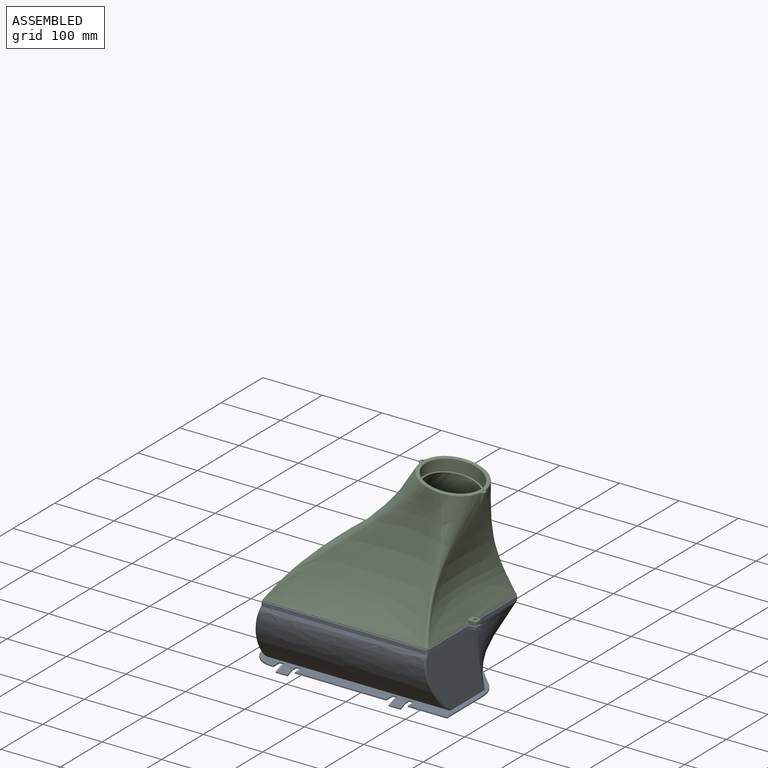
[diagram: assembled view]
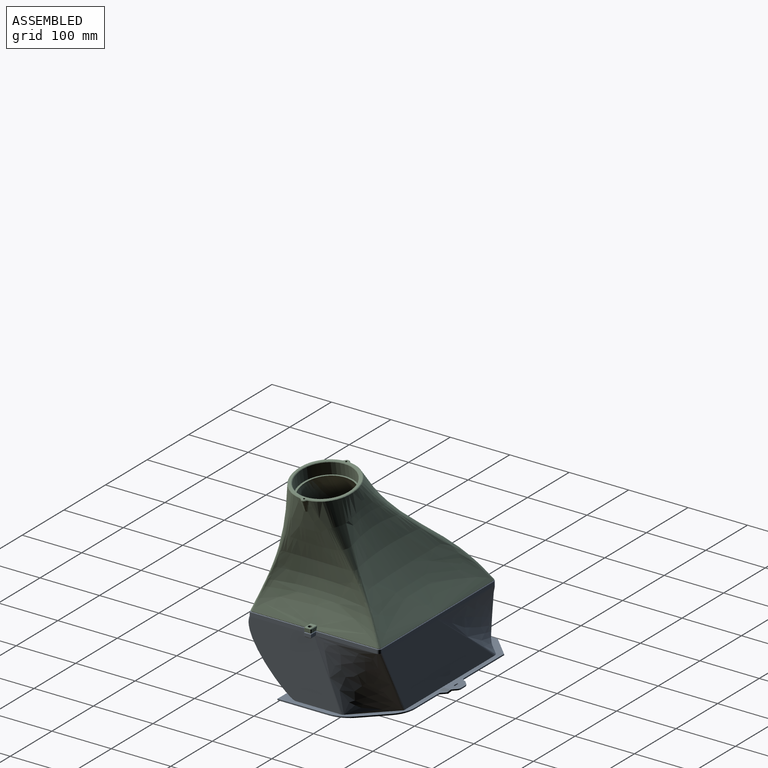
[diagram: assembled view, second angle]
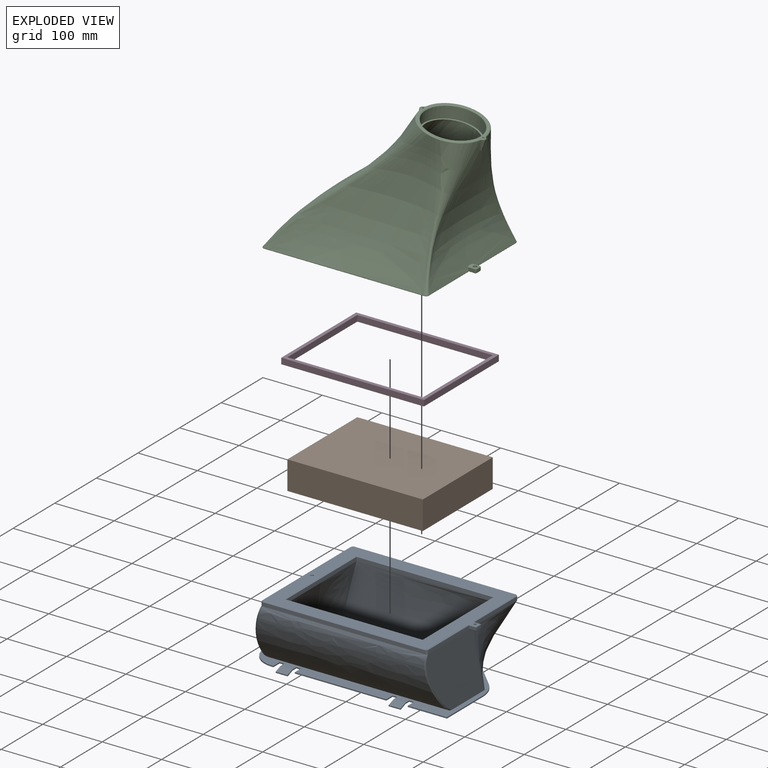
[diagram: exploded view]
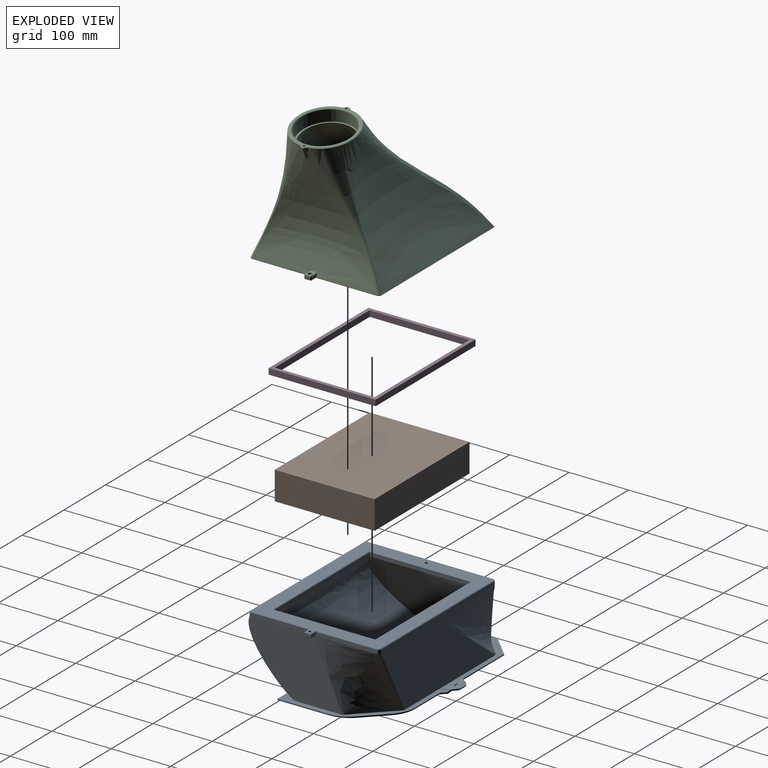
[diagram: exploded view, second angle]
ASSEMBLY  parts=4 mates=3
PART A: 123 faces, bbox 348.3x257.9x147.8 mm
  f0: plane 103x6.5mm, normal (1,0,0), area 663.5mm2, adj f71,f85,f99,f102,f113
  f1: bspline ~113x103.13mm, area 7040.3mm2, adj f57,f65,f77,f78,f93,f94,f120
  f2: plane 211.11x6.83mm, normal (-1,0,0), area 1371.6mm2, adj f74,f83,f86,f91,f92,f106
  f3: plane 335.43x180.15mm, normal (0,0,1), area 10633.3mm2, adj f5,f6,f7,f8,f9,f10,f11,f12
  f4: plane 39.82x4mm, normal (0,1,0), area 144.2mm2, adj f25,f36,f37,f41
  f5: plane 96.43x2mm, normal (0,1,0), area 192.9mm2, adj f3,f25,f33,f49
  f6: plane 21.22x6.32mm, normal (1,0,0), area 42.5mm2, adj f3,f7,f25,f29,f30,f31
  f7: plane 8x2mm, normal (0,-1,0), area 16mm2, adj f3,f6,f8,f25
  f8: plane 15x2mm, normal (-1,0,0), area 30mm2, adj f3,f7,f9,f25
  f9: plane 154x2mm, normal (0,-1,0), area 308mm2, adj f3,f8,f10,f25
  f10: plane 15x2mm, normal (1,0,0), area 30mm2, adj f3,f9,f11,f25
  f11: plane 8x2mm, normal (0,-1,0), area 16mm2, adj f3,f10,f12,f25
  f12: plane 21.22x6.32mm, normal (-1,0,0), area 42.5mm2, adj f3,f11,f25,f26,f27,f28
  f13: plane 21.22x6.32mm, normal (1,0,0), area 42.5mm2, adj f3,f14,f25,f26,f27,f28
  f14: plane 8x2mm, normal (0,-1,0), area 16mm2, adj f3,f13,f15,f25
  f15: plane 15x2mm, normal (-1,0,0), area 30mm2, adj f3,f14,f16,f25
  f16: plane 66x2mm, normal (0,-1,0), area 132mm2, adj f3,f15,f17,f25
  f17: plane 86.29x2mm, normal (1,0,0), area 172.6mm2, adj f3,f16,f25,f34
  f18: plane 55.72x2mm, normal (0,1,0), area 111.4mm2, adj f3,f25,f35,f50
  f19: plane 96x2mm, normal (-1,0,0), area 192mm2, adj f3,f20,f25,f33
  f20: cylinder r=40mm len=40mm, axis (0,0,-1), area 125.7mm2, adj f3,f19,f21,f25
  f21: plane 3x2mm, normal (0,-1,0), area 6mm2, adj f3,f20,f22,f25
  f22: plane 15x2mm, normal (1,0,0), area 30mm2, adj f3,f21,f23,f25
  f23: plane 8x2mm, normal (0,-1,0), area 16mm2, adj f3,f22,f24,f25
  f24: plane 21.22x6.32mm, normal (-1,0,0), area 42.5mm2, adj f3,f23,f25,f29,f30,f31
  f25: plane 335x180.59mm, normal (0,0,-1), area 19028.8mm2, adj f4,f5,f6,f7,f8,f9,f10,f11
  f26: plane 20x11.51mm, normal (0,0.35,-0.94), area 245.9mm2, adj f12,f13,f25,f28
  f27: plane 20x12.22mm, normal (0,-0.34,0.94), area 260mm2, adj f3,f12,f13,f28
  f28: plane 20x1.87mm, normal (0,-0.94,-0.35), area 40mm2, adj f12,f13,f26,f27
  f29: plane 20x11.51mm, normal (0,0.35,-0.94), area 245.9mm2, adj f6,f24,f25,f31
  f30: plane 20x12.22mm, normal (0,-0.34,0.94), area 260mm2, adj f3,f6,f24,f31
  f31: plane 20x1.87mm, normal (0,-0.94,-0.35), area 40mm2, adj f6,f24,f29,f30
  f32: plane 35.71x35.71mm, normal (0.71,0.71,0), area 101mm2, adj f3,f25,f34,f35
  f33: plane 36x36mm, normal (-0.71,0.71,0), area 101.8mm2, adj f3,f5,f19,f25
  f34: cylinder r=50mm len=35.36mm, axis (0,0,1), area 78.5mm2, adj f3,f17,f25,f32
  f35: cylinder r=50mm len=35.36mm, axis (0,0,-1), area 78.5mm2, adj f3,f18,f25,f32
  f36: plane 32.28x20mm, normal (0,0,-1), area 564.9mm2, adj f4,f37,f41,f42,f43,f44,f45,f46
  f37: plane 12.36x4mm, normal (-0.73,0,-0.69), area 57.6mm2, adj f4,f25,f36,f48
  f38: plane 16.5x4mm, normal (0.73,0,0.69), area 69.4mm2, adj f3,f39,f48,f59
  f39: plane 34x21mm, normal (0,0,1), area 619.4mm2, adj f38,f40,f42,f43,f44,f45,f46,f47
  f40: plane 16.5x4mm, normal (-0.73,0,0.69), area 69.4mm2, adj f3,f39,f47,f59
  f41: plane 12.36x4mm, normal (0.73,0,-0.69), area 57.6mm2, adj f4,f25,f36,f47
  f42: plane 8.72x2mm, normal (0,1,0), area 17.4mm2, adj f36,f39,f51,f52
  f43: plane 9x2mm, normal (0,1,0), area 18mm2, adj f36,f39,f44,f46
  f44: plane 2x2mm, normal (-1,0,0), area 4mm2, adj f36,f39,f43,f45
  f45: plane 9x2mm, normal (0,-1,0), area 18mm2, adj f36,f39,f44,f46
  f46: plane 2x2mm, normal (1,0,0), area 4mm2, adj f36,f39,f43,f45
  f47: plane 15.61x15.61mm, normal (-0.71,0.71,0), area 49mm2, adj f3,f25,f36,f39,f40,f41,f49,f51
  f48: plane 15.61x15.61mm, normal (0.71,0.71,0), area 49mm2, adj f3,f25,f36,f37,f38,f39,f50,f52
  f49: cylinder r=5mm len=3.54mm, axis (0,0,-1), area 7.9mm2, adj f3,f5,f25,f47
  f50: cylinder r=5mm len=3.54mm, axis (0,0,1), area 7.9mm2, adj f3,f18,f25,f48
  f51: cylinder r=10mm len=7.07mm, axis (0,0,-1), area 15.7mm2, adj f36,f39,f42,f47
  f52: cylinder r=10mm len=7.07mm, axis (0,0,1), area 15.7mm2, adj f36,f39,f42,f48
  f53: plane 26.89x26.74mm, normal (0.71,-0.71,0), area 75.9mm2, adj f25,f54,f58,f81
  f54: plane 95.91x2mm, normal (1,0,0), area 191.8mm2, adj f25,f53,f55,f80
  f55: plane 298.87x2mm, normal (0,1,0), area 597.7mm2, adj f25,f54,f56,f79
  f56: plane 65.27x2mm, normal (-1,0,0), area 130.5mm2, adj f25,f55,f78,f120
  f57: plane 56.12x56.12mm, normal (-0.71,-0.71,0), area 158.7mm2, adj f1,f25,f58,f120
  f58: plane 215.41x2mm, normal (0,-1,0), area 430.8mm2, adj f25,f53,f57,f77
  f59: plane 41.55x4mm, normal (0,-0.71,0.71), area 213.7mm2, adj f3,f38,f39,f40
  f60: plane 100x6.5mm, normal (1,0,0), area 644mm2, adj f72,f98,f100,f105,f122
  f61: plane 270.09x6.59mm, normal (0,1,0), area 1754.9mm2, adj f75,f76,f85,f91,f95,f110
  f62: plane 0.31x0.1mm, normal (-1,0,0), area 0mm2, adj f75,f83,f91
  f63: plane 170x6.5mm, normal (1,0,0), area 1105mm2, adj f64,f66,f80,f81,f88
  f64: plane 230x6.5mm, normal (0,-1,0), area 1495mm2, adj f63,f65,f77,f90
  f65: plane 170x49mm, normal (-1,0,0), area 3704.9mm2, adj f1,f64,f66,f78,f89,f93,f94
  f66: plane 230x6.5mm, normal (0,1,0), area 1495mm2, adj f63,f65,f79,f87
  f67: cylinder r=2.4mm len=6.5mm, axis (0,0,-1), area 98mm2, adj f70,f118
  f68: plane 274.01x6.55mm, normal (0,-1,0), area 1781mm2, adj f73,f86,f92,f103,f122
  f69: plane 290x218mm, normal (0,0,1), area 20420.7mm2, adj f103,f104,f105,f106,f107,f108,f109,f110
  f70: plane 4.8x4.8mm, normal (0,0,1), area 18.1mm2, adj f67
  f71: bspline ~113x110mm, area 10507.5mm2, adj f0,f3,f84,f85,f95,f96
  f72: plane 151.2x114.28mm, normal (1,0,-0.07), area 12117.5mm2, adj f3,f60,f84,f96,f121,f122
  f73: bspline ~322.28x113mm, area 40414.6mm2, adj f3,f68,f86,f121
  f74: plane 211.95x113.01mm, normal (-0.94,0,0.35), area 20318.5mm2, adj f2,f3,f83,f86
  f75: bspline ~182.28x113mm, area 9518mm2, adj f3,f61,f62,f82,f83,f91
  f76: plane 280.98x113.04mm, normal (0,1,-0.07), area 19834.7mm2, adj f3,f61,f82,f95
  f77: bspline ~263.04x113mm, area 25595.8mm2, adj f1,f58,f64,f81
  f78: plane 143.21x113.44mm, normal (-1,0,-0.08), area 10737.4mm2, adj f1,f56,f65,f79,f120
  f79: bspline ~298.87x113mm, area 37651.6mm2, adj f55,f66,f78,f80
  f80: plane 172.95x113mm, normal (0.88,0,-0.47), area 13864mm2, adj f54,f63,f79,f81
  f81: bspline ~113x94.83mm, area 7364mm2, adj f53,f63,f77,f80
  f82: bspline ~164.07x124.8mm, area 243.4mm2, adj f3,f75,f76
  f83: bspline ~134.12x54.71mm, area 842mm2, adj f2,f3,f62,f74,f75,f91
  f84: bspline ~122.58x45.85mm, area 155.3mm2, adj f3,f71,f72
  f85: cylinder r=5mm len=6.53mm, axis (0,0,-1), area 49.6mm2, adj f0,f61,f71,f95,f112
  f86: bspline ~130.13x100.4mm, area 1286.7mm2, adj f2,f3,f68,f73,f74,f92
  f87: plane 231.41x0.71mm, normal (0,0.71,0.71), area 230.7mm2, adj f66,f88,f89,f116
  f88: plane 171.41x0.71mm, normal (0.71,0,0.71), area 170.7mm2, adj f63,f87,f90,f114
  f89: plane 171.41x0.71mm, normal (-0.71,0,0.71), area 170.7mm2, adj f65,f87,f90,f117
  f90: plane 231.41x0.71mm, normal (0,-0.71,0.71), area 230.7mm2, adj f64,f88,f89,f115
  f91: cylinder r=5mm len=21.54mm, axis (0,0,-1), area 73.1mm2, adj f2,f61,f62,f75,f83,f108
  f92: cylinder r=4mm len=6.61mm, axis (0,0,-1), area 41.3mm2, adj f2,f68,f86,f104
  f93: plane 42.5x12.33mm, normal (0,-1,0), area 263.7mm2, adj f1,f65,f94
  f94: plane 57.12x13.2mm, normal (0,0,1), area 320.2mm2, adj f1,f65,f93
  f95: bspline ~140.44x86.16mm, area 804.5mm2, adj f3,f61,f71,f76,f85
  f96: plane 11x10mm, normal (0,0,-1), area 91.1mm2, adj f71,f72,f100,f101,f102,f119
  f97: plane 12x5.5mm, normal (1,0,0), area 66mm2, adj f98,f99,f101,f109
  f98: plane 12x5.5mm, normal (0,-1,0), area 66mm2, adj f60,f97,f100,f107
  f99: plane 12x5.5mm, normal (0,1,0), area 66mm2, adj f0,f97,f102,f111
  f100: plane 12x1mm, normal (0,-0.71,-0.71), area 16.3mm2, adj f60,f96,f98,f101
  f101: plane 12x1mm, normal (0.71,0,-0.71), area 15.6mm2, adj f96,f97,f100,f102
  f102: plane 12x1mm, normal (0,0.71,-0.71), area 16.3mm2, adj f0,f96,f99,f101
  f103: plane 275x1mm, normal (0,-0.71,0.71), area 388.2mm2, adj f68,f69,f104,f122
  f104: cone r=3mm half-angle=45deg, axis (0,0,-1), area 7.8mm2, adj f69,f92,f103,f106
  f105: plane 101x1mm, normal (0.71,0,0.71), area 141.4mm2, adj f60,f69,f107,f122
  f106: plane 211x1mm, normal (-0.71,0,0.71), area 298.4mm2, adj f2,f69,f104,f108
  f107: plane 13x1mm, normal (0,-0.71,0.71), area 17mm2, adj f69,f98,f105,f109
  f108: cone r=4mm half-angle=45deg, axis (0,0,-1), area 10mm2, adj f69,f91,f106,f110
  f109: plane 12x1mm, normal (0.71,0,0.71), area 15.6mm2, adj f69,f97,f107,f111
  f110: plane 270x1mm, normal (0,0.71,0.71), area 381.8mm2, adj f61,f69,f108,f112
  f111: plane 13x1mm, normal (0,0.71,0.71), area 17mm2, adj f69,f99,f109,f113
  f112: cone r=4mm half-angle=45deg, axis (0,0,-1), area 10mm2, adj f69,f85,f110,f113
  f113: plane 103x1mm, normal (0.71,0,0.71), area 145mm2, adj f0,f69,f111,f112
  f114: plane 172.83x0.71mm, normal (0.38,0,0.92), area 131.7mm2, adj f69,f88,f115,f116
  f115: plane 232.83x0.71mm, normal (0,-0.38,0.92), area 177.7mm2, adj f69,f90,f114,f117
  f116: plane 232.83x0.71mm, normal (0,0.38,0.92), area 177.7mm2, adj f69,f87,f114,f117
  f117: plane 172.83x0.71mm, normal (-0.38,0,0.92), area 131.7mm2, adj f69,f89,f115,f116
  f118: cone r=2.4mm half-angle=45deg, axis (0,0,1), area 25.8mm2, adj f67,f69
  f119: cylinder r=2.45mm len=7.5mm, axis (0,0,-1), area 115.5mm2, adj f69,f96
  f120: cylinder r=2mm len=2.89mm, axis (0,0,1), area 3.8mm2, adj f1,f25,f56,f57,f78
  f121: bspline ~117.53x77.92mm, area 374.4mm2, adj f3,f72,f73,f122
  f122: plane 8.07x2.01mm, normal (0.71,-0.71,0), area 20.6mm2, adj f60,f68,f72,f103,f105,f121
PART B: 6 faces, bbox 228x168x48 mm
  f0: plane 168x48mm, normal (1,0,0), area 8064mm2, adj f1,f3,f4,f5
  f1: plane 228x48mm, normal (0,1,0), area 10944mm2, adj f0,f2,f4,f5
  f2: plane 168x48mm, normal (-1,0,0), area 8064mm2, adj f1,f3,f4,f5
  f3: plane 228x48mm, normal (0,-1,0), area 10944mm2, adj f0,f2,f4,f5
  f4: plane 228x168mm, normal (0,0,-1), area 38304mm2, adj f0,f1,f2,f3
  f5: plane 228x168mm, normal (0,0,1), area 38304mm2, adj f0,f1,f2,f3
PART C: 83 faces, bbox 305x220.6x230 mm
  f0: bspline ~300.89x225.23mm, area 149627.8mm2, adj f1,f2,f18,f20,f21,f22,f27,f29
  f1: bspline ~97.22x0.78mm, area 91.5mm2, adj f0,f4,f53,f75
  f2: bspline ~102.78x0.78mm, area 96.5mm2, adj f0,f4,f55,f70
  f3: cylinder r=3.25mm len=8mm, axis (0,0,-1), area 163.4mm2, adj f4,f65
  f4: plane 290.02x218.3mm, normal (0,0,-1), area 16875.6mm2, adj f1,f2,f3,f46,f47,f48,f49,f50
  f5: plane 109.21x103.07mm, normal (0.17,0,0.98), area 1400.3mm2, adj f23,f25,f27,f28,f29,f30,f31,f32
  f6: cylinder r=46.25mm len=94.65mm, axis (0.17,0,0.98), area 5957.2mm2, adj f7,f45
  f7: plane 93.12x91.71mm, normal (0.17,0,0.98), area 846.9mm2, adj f6,f13,f14,f15,f16
  f8: plane 240x9.42mm, normal (0,-1,0), area 2259.9mm2, adj f9,f11,f12,f57
  f9: plane 180x9.42mm, normal (1,0,0), area 1694.9mm2, adj f8,f10,f12,f56
  f10: plane 240x9.42mm, normal (0,1,0), area 2259.9mm2, adj f9,f11,f12,f58
  f11: plane 180x9.42mm, normal (-1,0,0), area 1694.9mm2, adj f8,f10,f12,f59
  f12: plane 240x180mm, normal (0,0,-1), area 7558.5mm2, adj f8,f9,f10,f11,f60,f61,f62,f63
  f13: bspline ~240.7x195.71mm, area 28679.4mm2, adj f7,f14,f16,f60,f62
  f14: bspline ~203.9x184.18mm, area 26724.5mm2, adj f7,f13,f15,f61,f62,f63
  f15: bspline ~251.01x202.89mm, area 28903.2mm2, adj f7,f14,f16,f60,f61
  f16: bspline ~191.16x170mm, area 20595.8mm2, adj f7,f13,f15,f60
  f17: cylinder r=5mm len=13.1mm, axis (0.17,0,0.98), area 80.7mm2, adj f18,f41
  f18: bspline ~18.02x16.22mm, area 95.6mm2, adj f0,f17,f39,f43
  f19: cone r=5mm half-angle=12deg, axis (0.17,0,0.98), area 91.1mm2, adj f20,f21,f22,f30
  f20: plane 6.47x1.15mm, normal (-0.17,0,-0.98), area 2.3mm2, adj f0,f19,f21,f22
  f21: bspline ~23.16x7.67mm, area 77.6mm2, adj f0,f19,f20,f28
  f22: bspline ~23.69x7.8mm, area 77.6mm2, adj f0,f19,f20,f32
  f23: cylinder r=1.65mm len=15.35mm, axis (0.17,0,0.98), area 155.5mm2, adj f5,f24
  f24: plane 3.3x3.25mm, normal (0.17,0,0.98), area 8.6mm2, adj f23
  f25: cylinder r=1.65mm len=15.35mm, axis (0.17,0,0.98), area 155.5mm2, adj f5,f26
  f26: plane 3.3x3.25mm, normal (0.17,0,0.98), area 8.6mm2, adj f25
  f27: bspline ~18.86x6.94mm, area 27.4mm2, adj f0,f5,f28,f29
  f28: bspline ~4.44x2.95mm, area 7.2mm2, adj f5,f21,f27,f30
  f29: bspline ~19.76x19.28mm, area 36.1mm2, adj f0,f5,f27,f31
  f30: cone r=3.77mm half-angle=39deg, axis (-0.17,0,-0.98), area 13mm2, adj f5,f19,f28,f32
  f31: bspline ~25.93x7.7mm, area 38.5mm2, adj f0,f5,f29,f33
  f32: bspline ~4.44x2.95mm, area 7.2mm2, adj f5,f22,f30,f34
  f33: bspline ~26.08x7.59mm, area 36.3mm2, adj f0,f5,f31,f35
  f34: bspline ~18.87x6.93mm, area 27.3mm2, adj f0,f5,f32,f36
  f35: bspline ~19.75x19.61mm, area 31.5mm2, adj f0,f5,f33,f37
  f36: bspline ~19.78x19.28mm, area 35.5mm2, adj f0,f5,f34,f38
  f37: bspline ~18.79x7.28mm, area 23.1mm2, adj f0,f5,f35,f39
  f38: bspline ~25.94x7.75mm, area 37.6mm2, adj f0,f5,f36,f40
  f39: bspline ~4.49x3.39mm, area 6.4mm2, adj f5,f18,f37,f41
  f40: bspline ~26.08x7.66mm, area 35.3mm2, adj f0,f5,f38,f42
  f41: cone r=4mm half-angle=45deg, axis (-0.17,0,-0.98), area 12mm2, adj f5,f17,f39,f43
  f42: bspline ~19.76x19.6mm, area 31.1mm2, adj f0,f5,f40,f44
  f43: bspline ~4.49x3.39mm, area 6.4mm2, adj f5,f18,f41,f44
  f44: bspline ~18.79x7.28mm, area 23mm2, adj f0,f5,f42,f43
  f45: cone r=46.25mm half-angle=45deg, axis (0.17,0,0.98), area 415.4mm2, adj f5,f6
  f46: bspline ~102x0.91mm, area 103.4mm2, adj f0,f4,f47,f48
  f47: bspline ~4.68x4.45mm, area 6.8mm2, adj f0,f4,f46,f49
  f48: bspline ~108x0.92mm, area 109.5mm2, adj f0,f4,f46,f50
  f49: bspline ~135x0.88mm, area 134.7mm2, adj f0,f4,f47,f51
  f50: bspline ~4.64x4.45mm, area 6.8mm2, adj f0,f4,f48,f52
  f51: bspline ~135x0.89mm, area 135.6mm2, adj f0,f4,f49,f53
  f52: bspline ~135x0.9mm, area 136.1mm2, adj f0,f4,f50,f54
  f53: bspline ~4.81x4.68mm, area 6.7mm2, adj f0,f1,f4,f51
  f54: bspline ~135x0.9mm, area 137mm2, adj f0,f4,f52,f55
  f55: bspline ~4.82x4.64mm, area 6.7mm2, adj f0,f2,f4,f54
  f56: plane 181.17x0.58mm, normal (0.71,0,-0.71), area 149.1mm2, adj f4,f9,f57,f58
  f57: plane 241.17x0.58mm, normal (0,-0.71,-0.71), area 198.6mm2, adj f4,f8,f56,f59
  f58: plane 241.17x0.58mm, normal (0,0.71,-0.71), area 198.6mm2, adj f4,f10,f56,f59
  f59: plane 181.17x0.58mm, normal (-0.71,0,-0.71), area 149.1mm2, adj f4,f11,f57,f58
  f60: bspline ~181.35x1.38mm, area 141.1mm2, adj f12,f13,f15,f16,f61,f62
  f61: bspline ~222.51x3.72mm, area 144mm2, adj f12,f14,f15,f60,f63
  f62: bspline ~222.51x1.57mm, area 153.4mm2, adj f12,f13,f14,f60,f63
  f63: bspline ~164.27x0.77mm, area 78.8mm2, adj f12,f14,f61,f62
  f64: cylinder r=5.25mm len=16.48mm, axis (0,0,1), area 273.9mm2, adj f0,f65
  f65: plane 10.51x10.46mm, normal (0,0,1), area 53.4mm2, adj f0,f3,f64
  f66: plane 10x5.5mm, normal (1,0,0), area 55mm2, adj f73,f74,f78,f79
  f67: plane 13.32x5.56mm, normal (0.02,1,0), area 67.8mm2, adj f0,f70,f72,f73
  f68: plane 13.28x5.56mm, normal (-0.02,-1,0), area 67.6mm2, adj f0,f75,f79,f81
  f69: plane 13.69x10.34mm, normal (0,0,1), area 102.6mm2, adj f0,f72,f78,f81,f82
  f70: plane 11.84x1.2mm, normal (0.01,0.71,-0.71), area 16.3mm2, adj f0,f2,f4,f67,f71
  f71: plane 1x1mm, normal (0.58,0.57,-0.58), area 0.9mm2, adj f70,f73,f74
  f72: plane 13.6x1.23mm, normal (0.01,0.71,0.71), area 19mm2, adj f0,f67,f69,f76
  f73: plane 5.5x1mm, normal (0.71,0.7,0), area 7.7mm2, adj f66,f67,f71,f76
  f74: plane 10x1mm, normal (0.71,0,-0.71), area 14.1mm2, adj f4,f66,f71,f77
  f75: plane 11.82x1.21mm, normal (-0.01,-0.71,-0.71), area 16.2mm2, adj f0,f1,f4,f68,f77
  f76: plane 1x1mm, normal (0.58,0.57,0.58), area 0.9mm2, adj f72,f73,f78
  f77: plane 1.02x1mm, normal (0.57,-0.58,-0.57), area 0.9mm2, adj f74,f75,f79
  f78: plane 10x1mm, normal (0.71,0,0.71), area 14.1mm2, adj f66,f69,f76,f80
  f79: plane 5.5x1.02mm, normal (0.7,-0.71,0), area 7.8mm2, adj f66,f68,f77,f80
  f80: plane 1.02x1mm, normal (0.57,-0.58,0.57), area 0.9mm2, adj f78,f79,f81
  f81: plane 13.58x1.24mm, normal (-0.01,-0.71,0.71), area 19mm2, adj f0,f68,f69,f80
  f82: cylinder r=3.25mm len=7.5mm, axis (0,0,-1), area 153.2mm2, adj f4,f69
PART D: 10 faces, bbox 240x180x10 mm
  f0: plane 240x10mm, normal (0,-1,0), area 2400mm2, adj f1,f7,f8,f9
  f1: plane 180x10mm, normal (1,0,0), area 1800mm2, adj f0,f2,f8,f9
  f2: plane 240x10mm, normal (0,1,0), area 2400mm2, adj f1,f7,f8,f9
  f3: plane 228x10mm, normal (0,-1,0), area 2280mm2, adj f4,f6,f8,f9
  f4: plane 168x10mm, normal (-1,0,0), area 1680mm2, adj f3,f5,f8,f9
  f5: plane 228x10mm, normal (0,1,0), area 2280mm2, adj f4,f6,f8,f9
  f6: plane 168x10mm, normal (1,0,0), area 1680mm2, adj f3,f5,f8,f9
  f7: plane 180x10mm, normal (-1,0,0), area 1800mm2, adj f0,f2,f8,f9
  f8: plane 240x180mm, normal (0,0,1), area 4896mm2, adj f0,f1,f2,f3,f4,f5,f6,f7
  f9: plane 240x180mm, normal (0,0,-1), area 4896mm2, adj f0,f1,f2,f3,f4,f5,f6,f7
PLACE A t=(-6.17,-1.65,-0.63)mm fixed
PLACE B t=(22.29,-25.69,121.87)mm
PLACE C t=(-6.17,-1.65,-1.13)mm
PLACE D t=(22.29,-25.69,121.87)mm
MATE fastened A.f69 <-> D.f9  axis (0,0,1) through (22.29,-25.69,121.87)mm
MATE fastened B.f5 <-> A.f69  axis (0,0,1) through (22.29,-25.69,121.87)mm
MATE fastened A.f67 <-> C.f3  axis (0,0,1) through (-108.83,-25.65,121.87)mm
